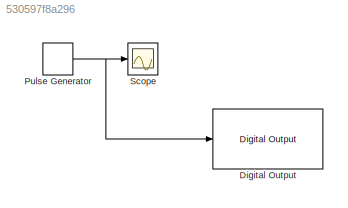
MODEL slx_530597f8a296
KIND model
CONFIG AbsTol = auto
CONFIG EnableMultiTasking = on
CONFIG FixedStep = auto
CONFIG MaxStep = auto
CONFIG MinStep = auto
CONFIG RelTol = 1e-3
CONFIG SampleTimeConstraint = Unconstrained
CONFIG SolverName = FixedStepAuto
CONFIG StartTime = 0.0
CONFIG StopTime = inf
BLOCK [Reference] Digital Output  REF=c2837xDlib/Digital Output
  SourceBlock = c2837xDlib/Digital Output
  SourceType = F2837x GPIO Digital Output
  UserDataPersistent = on
BLOCK [DiscretePulseGenerator] Pulse Generator
  Period = 1
  PulseType = Time based
  PulseWidth = 5
BLOCK [Scope] Scope
  Floating = off
  NumInputPorts = 1
  ScopeSpecificationString = Simulink.scopes.TimeScopeBlockCfg('CurrentConfiguration', extmgr.ConfigurationSet(extmgr.Configuration('Core','General UI',true),extmgr.Configuration('Core','Source UI',true),extmgr.Configuration('Sources','WiredSimulink',true),extmgr.Configuration('Visuals','Time Domain',true,'SerializedDisplays',{struct('MinYLimReal','-0.125','MaxYLimReal','1.125','YLabelReal','','MinYLimMag','0.00000','MaxYLimM...<+1377ch>
NET Pulse Generator:1 -> Digital Output:1, Scope:1
note: NET lines group one-source signal fan-out (src -> all destinations, sorted); 1:1 wires keep LINE
